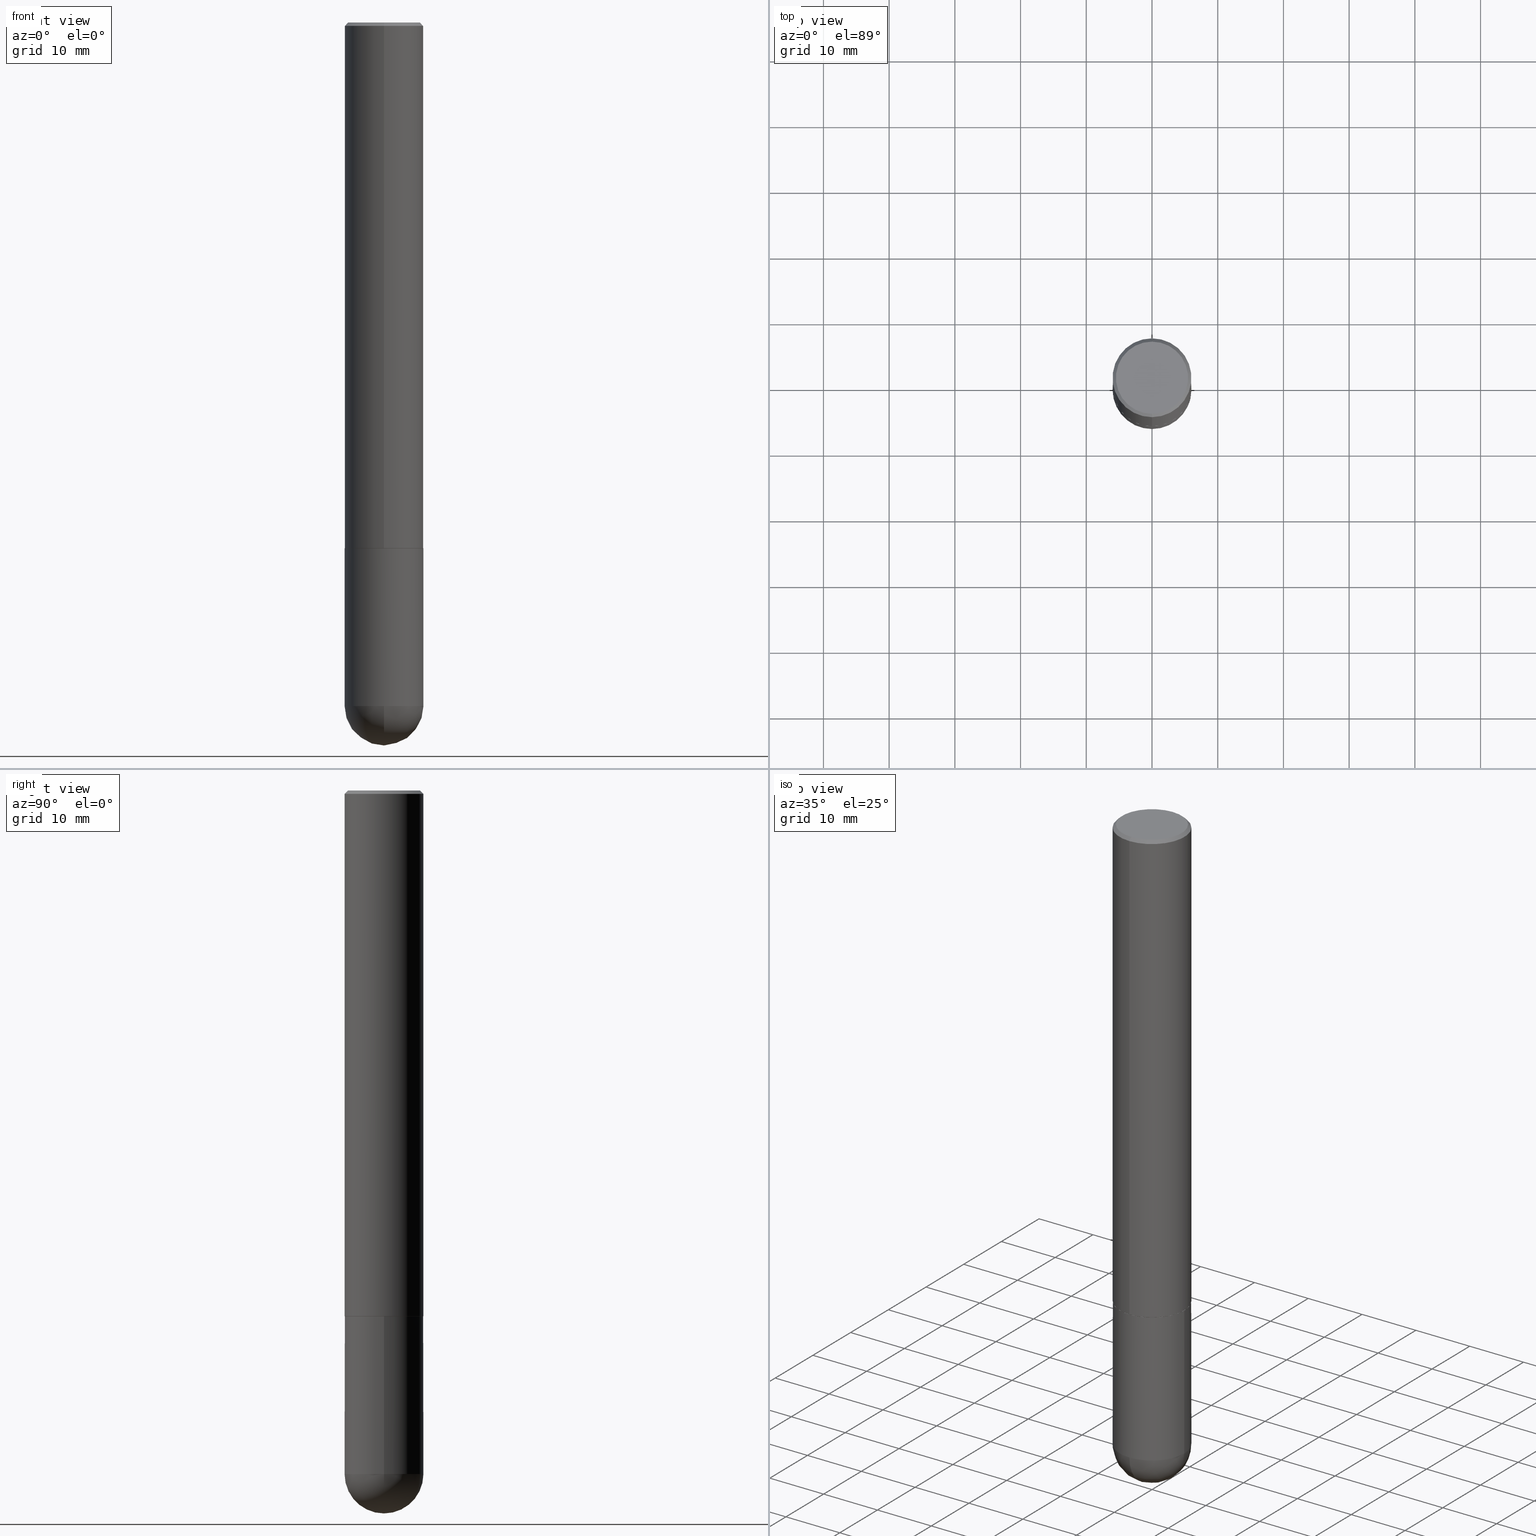
[diagram: canonical four-view strip — front | top / right | iso, engineering-drawing reading convention]
A machine part, canonical four-view strip (front | top / right | iso — engineering-drawing reading convention). The complete STEP part file that produces these views, byte-faithful:
ISO-10303-21;
HEADER;
FILE_DESCRIPTION (( 'STEP AP203' ),
    '1' );
FILE_NAME ('43905.STEP',
    '2024-04-10T11:44:59',
    ( '' ),
    ( '' ),
    'SwSTEP 2.0',
    'SolidWorks 2023',
    '' );
FILE_SCHEMA (( 'CONFIG_CONTROL_DESIGN' ));
ENDSEC;

DATA;
#1 = AXIS2_PLACEMENT_3D ( 'NONE', #88, #159, #226 ) ;
#2 = CARTESIAN_POINT ( 'NONE',  ( -5.110810708303771248E-45, 7.292456936536269045E-31, 2.089277500898832412E-16 ) ) ;
#3 = CC_DESIGN_DATE_AND_TIME_ASSIGNMENT ( #148, #327, ( #183 ) ) ;
#4 = FACE_OUTER_BOUND ( 'NONE', #208, .T. ) ;
#5 = FACE_OUTER_BOUND ( 'NONE', #63, .T. ) ;
#6 = LOCAL_TIME ( 7, 44, 59.00000000000000000, #35 ) ;
#7 = LINE ( 'NONE', #98, #215 ) ;
#8 = DIRECTION ( 'NONE',  ( -6.982962677686265133E-15, -1.000000000000000000, 4.645999989224937221E-15 ) ) ;
#9 = EDGE_LOOP ( 'NONE', ( #292, #170 ) ) ;
#10 = MECHANICAL_CONTEXT ( 'NONE', #117, 'mechanical' ) ;
#11 = CARTESIAN_POINT ( 'NONE',  ( 1.509716530915768746E-15, 0.2161999999999997257, -6.501650284879086356E-16 ) ) ;
#12 = ORIENTED_EDGE ( 'NONE', *, *, #52, .F. ) ;
#13 = CARTESIAN_POINT ( 'NONE',  ( 1.026957149490729443E-28, -1.558027752357013406E-14, -4.330700000000000216 ) ) ;
#14 = CC_DESIGN_SECURITY_CLASSIFICATION ( #218, ( #102 ) ) ;
#15 = APPLICATION_PROTOCOL_DEFINITION ( 'international standard', 'config_control_design', 1994, #117 ) ;
#16 = VECTOR ( 'NONE', #279, 39.37007874015748143 ) ;
#17 = CLOSED_SHELL ( 'NONE', ( #254, #407, #156, #371, #249, #131, #314, #73 ) ) ;
#18 = ORIENTED_EDGE ( 'NONE', *, *, #374, .F. ) ;
#19 =( NAMED_UNIT ( * ) PLANE_ANGLE_UNIT ( ) SI_UNIT ( $, .RADIAN. ) );
#20 = ORIENTED_EDGE ( 'NONE', *, *, #216, .T. ) ;
#21 = EDGE_LOOP ( 'NONE', ( #399, #403 ) ) ;
#22 = DIRECTION ( 'NONE',  ( -1.000000000000000000, 6.982962677686265922E-15, -4.883557194083112901E-29 ) ) ;
#23 = CARTESIAN_POINT ( 'NONE',  ( 7.704581799185809683E-29, -1.099342828199384155E-14, -3.149600000000000399 ) ) ;
#24 = DIRECTION ( 'NONE',  ( -6.982962677686265922E-15, -1.000000000000000000, 3.490420460373964582E-15 ) ) ;
#25 = FACE_OUTER_BOUND ( 'NONE', #21, .T. ) ;
#26 = ADVANCED_FACE ( 'NONE', ( #322 ), #95, .T. ) ;
#27 = CIRCLE ( 'NONE', #83, 0.2351999999999999924 ) ;
#28 = DIRECTION ( 'NONE',  ( -6.982962677686265922E-15, -1.000000000000000000, 4.626330217890361448E-15 ) ) ;
#29 = VECTOR ( 'NONE', #160, 39.37007874015748143 ) ;
#30 = CARTESIAN_POINT ( 'NONE',  ( -1.649375784469421978E-15, -0.2362000000000114008, -3.148599999999999177 ) ) ;
#31 = DIRECTION ( 'NONE',  ( 2.446209613660721864E-29, -3.490420460373964582E-15, -1.000000000000000000 ) ) ;
#32 = APPROVAL_STATUS ( 'not_yet_approved' ) ;
#33 = DIRECTION ( 'NONE',  ( -2.446209613660721864E-29, 3.490420460373964582E-15, 1.000000000000000000 ) ) ;
#34 = VERTEX_POINT ( 'NONE', #136 ) ;
#35 = COORDINATED_UNIVERSAL_TIME_OFFSET ( 5, 0, .BEHIND. ) ;
#36 = AXIS2_PLACEMENT_3D ( 'NONE', #138, #172, #60 ) ;
#37 = DIRECTION ( 'NONE',  ( -2.446209613660721864E-29, 3.490420460373964582E-15, 1.000000000000000000 ) ) ;
#38 = VERTEX_POINT ( 'NONE', #255 ) ;
#39 = SPHERICAL_SURFACE ( 'NONE', #146, 0.2362000000000002709 ) ;
#40 = VERTEX_POINT ( 'NONE', #391 ) ;
#41 = APPLICATION_PROTOCOL_DEFINITION ( 'international standard', 'config_control_design', 1994, #375 ) ;
#42 = PRODUCT ( '43905', '43905', '', ( #10 ) ) ;
#43 = ORIENTED_EDGE ( 'NONE', *, *, #185, .T. ) ;
#44 = PERSON_AND_ORGANIZATION ( #381, #383 ) ;
#45 = AXIS2_PLACEMENT_3D ( 'NONE', #309, #276, #406 ) ;
#46 = ORIENTED_EDGE ( 'NONE', *, *, #331, .F. ) ;
#47 = CALENDAR_DATE ( 2024, 10, 4 ) ;
#48 = EDGE_CURVE ( 'NONE', #177, #133, #318, .T. ) ;
#49 = EDGE_LOOP ( 'NONE', ( #350, #234, #184, #46 ) ) ;
#50 = APPROVAL ( #175, 'UNSPECIFIED' ) ;
#51 = LINE ( 'NONE', #186, #192 ) ;
#52 = EDGE_CURVE ( 'NONE', #74, #119, #409, .T. ) ;
#53 = DIRECTION ( 'NONE',  ( -6.982962677686265922E-15, -1.000000000000000000, 3.490420460373964977E-15 ) ) ;
#54 = DIRECTION ( 'NONE',  ( -2.446209613660721864E-29, 3.490420460373964582E-15, 1.000000000000000000 ) ) ;
#55 = DIRECTION ( 'NONE',  ( -2.446209613660721864E-29, 3.490420460373964582E-15, 1.000000000000000000 ) ) ;
#56 = CC_DESIGN_APPROVAL ( #50, ( #102 ) ) ;
#57 = ADVANCED_FACE ( 'NONE', ( #259 ), #39, .T. ) ;
#58 = CIRCLE ( 'NONE', #45, 0.2361999999999999933 ) ;
#59 = FACE_OUTER_BOUND ( 'NONE', #396, .T. ) ;
#60 = DIRECTION ( 'NONE',  ( 1.000000000000000000, -6.982962677686265133E-15, 0.000000000000000000 ) ) ;
#61 = CARTESIAN_POINT ( 'NONE',  ( -1.620449627073634487E-15, -0.2361999999999999933, -0.01999999999999922673 ) ) ;
#62 = DIRECTION ( 'NONE',  ( 1.000000000000000000, -6.982962677686265133E-15, 0.000000000000000000 ) ) ;
#63 = EDGE_LOOP ( 'NONE', ( #237, #104, #368, #258 ) ) ;
#64 = LENGTH_MEASURE_WITH_UNIT ( LENGTH_MEASURE( 0.02539999999999999897 ), #144 );
#65 = EDGE_CURVE ( 'NONE', #74, #228, #284, .T. ) ;
#66 = DIRECTION ( 'NONE',  ( 6.982962677686265922E-15, 1.000000000000000000, 0.000000000000000000 ) ) ;
#67 = ORIENTED_EDGE ( 'NONE', *, *, #242, .T. ) ;
#68 = APPROVAL_DATE_TIME ( #106, #50 ) ;
#69 = DIRECTION ( 'NONE',  ( 5.024295867789605402E-15, 0.7071067811867671749, 0.7071067811863278596 ) ) ;
#70 = CC_DESIGN_PERSON_AND_ORGANIZATION_ASSIGNMENT ( #352, #238, ( #183 ) ) ;
#71 = VERTEX_POINT ( 'NONE', #132 ) ;
#72 = APPROVAL_ROLE ( '' ) ;
#73 = ADVANCED_FACE ( 'NONE', ( #293 ), #207, .F. ) ;
#74 = VERTEX_POINT ( 'NONE', #13 ) ;
#75 = DATE_TIME_ROLE ( 'classification_date' ) ;
#76 = MANIFOLD_SOLID_BREP ( 'Body-Move/Copy2[2]', #17 ) ;
#77 = MANIFOLD_SOLID_BREP ( 'Body-Move/Copy2[1]', #225 ) ;
#78 = EDGE_LOOP ( 'NONE', ( #329, #149, #20, #361 ) ) ;
#79 = CARTESIAN_POINT ( 'NONE',  ( 7.704581799185809683E-29, -1.099342828199384155E-14, -3.149600000000000399 ) ) ;
#80 = VERTEX_POINT ( 'NONE', #223 ) ;
#81 =( GEOMETRIC_REPRESENTATION_CONTEXT ( 3 ) GLOBAL_UNCERTAINTY_ASSIGNED_CONTEXT ( ( #110 ) ) GLOBAL_UNIT_ASSIGNED_CONTEXT ( ( #101, #19, #140 ) ) REPRESENTATION_CONTEXT ( 'NONE', 'WORKASPACE' ) );
#82 = DIRECTION ( 'NONE',  ( 1.000000000000000000, -6.982962677686266711E-15, 4.876176775795936353E-29 ) ) ;
#83 = AXIS2_PLACEMENT_3D ( 'NONE', #79, #373, #311 ) ;
#84 = LINE ( 'NONE', #217, #157 ) ;
#85 = DIRECTION ( 'NONE',  ( -2.446209613660721864E-29, 3.490420460373964582E-15, 1.000000000000000000 ) ) ;
#86 = CIRCLE ( 'NONE', #36, 0.2361999999999999933 ) ;
#87 = CIRCLE ( 'NONE', #398, 0.2362000000000004096 ) ;
#88 = CARTESIAN_POINT ( 'NONE',  ( 1.001297202692504215E-28, -1.429587034189326149E-14, -4.094500000000000028 ) ) ;
#89 = DIRECTION ( 'NONE',  ( -6.982962677686265922E-15, -1.000000000000000000, 3.490420460373964582E-15 ) ) ;
#90 = CC_DESIGN_PERSON_AND_ORGANIZATION_ASSIGNMENT ( #390, #209, ( #102 ) ) ;
#91 = DIRECTION ( 'NONE',  ( -6.982962677686265922E-15, -1.000000000000000000, 3.490420460373964582E-15 ) ) ;
#92 = CARTESIAN_POINT ( 'NONE',  ( 9.681852249011155898E-29, -1.477005271003331337E-14, -4.094500000000000028 ) ) ;
#93 = AXIS2_PLACEMENT_3D ( 'NONE', #103, #31, #389 ) ;
#94 = DIRECTION ( 'NONE',  ( -1.000000000000000000, 6.982962677686265922E-15, -4.876176775795935793E-29 ) ) ;
#95 = CYLINDRICAL_SURFACE ( 'NONE', #277, 0.2361999999999999933 ) ;
#96 = EDGE_CURVE ( 'NONE', #34, #243, #372, .T. ) ;
#97 = EDGE_LOOP ( 'NONE', ( #174, #43, #118, #294, #245 ) ) ;
#98 = CARTESIAN_POINT ( 'NONE',  ( -0.2361999999999999933, 1.678301941865356591E-15, -1.161852468318208757E-29 ) ) ;
#99 = ORIENTED_EDGE ( 'NONE', *, *, #96, .T. ) ;
#100 = DIMENSIONAL_EXPONENTS ( 1.000000000000000000, 0.000000000000000000, 0.000000000000000000, 0.000000000000000000, 0.000000000000000000, 0.000000000000000000, 0.000000000000000000 ) ;
#101 =( CONVERSION_BASED_UNIT ( 'INCH', #64 ) LENGTH_UNIT ( ) NAMED_UNIT ( #100 ) );
#102 = PRODUCT_DEFINITION_FORMATION_WITH_SPECIFIED_SOURCE ( 'ANY', '', #42, .NOT_KNOWN. ) ;
#103 = CARTESIAN_POINT ( 'NONE',  ( 4.892419227321456446E-31, -6.980840920747946766E-17, -0.02000000000000005246 ) ) ;
#104 = ORIENTED_EDGE ( 'NONE', *, *, #246, .T. ) ;
#105 = CIRCLE ( 'NONE', #346, 0.2351999999999999924 ) ;
#106 = DATE_AND_TIME ( #393, #313 ) ;
#107 = EDGE_CURVE ( 'NONE', #71, #119, #214, .T. ) ;
#108 = AXIS2_PLACEMENT_3D ( 'NONE', #353, #328, #330 ) ;
#109 = CARTESIAN_POINT ( 'NONE',  ( 1.649375784469595330E-15, 0.2361999999999855882, -4.094500000000001805 ) ) ;
#110 = UNCERTAINTY_MEASURE_WITH_UNIT (LENGTH_MEASURE( 1.000000000000000082E-05 ), #101, 'distance_accuracy_value', 'NONE');
#111 = ORIENTED_EDGE ( 'NONE', *, *, #359, .F. ) ;
#112 = PERSON_AND_ORGANIZATION_ROLE ( 'design_owner' ) ;
#113 = EDGE_CURVE ( 'NONE', #243, #34, #408, .T. ) ;
#114 = ORIENTED_EDGE ( 'NONE', *, *, #224, .F. ) ;
#115 = CALENDAR_DATE ( 2024, 10, 4 ) ;
#116 = APPROVAL_PERSON_ORGANIZATION ( #321, #269, #167 ) ;
#117 = APPLICATION_CONTEXT ( 'configuration controlled 3d designs of mechanical parts and assemblies' ) ;
#118 = ORIENTED_EDGE ( 'NONE', *, *, #402, .F. ) ;
#119 = VERTEX_POINT ( 'NONE', #109 ) ;
#120 = EDGE_CURVE ( 'NONE', #38, #80, #236, .T. ) ;
#121 = AXIS2_PLACEMENT_3D ( 'NONE', #315, #411, #24 ) ;
#122 = CARTESIAN_POINT ( 'NONE',  ( -1.678301941865258773E-15, -0.2362000000000146760, -4.094499999999999140 ) ) ;
#123 = AXIS2_PLACEMENT_3D ( 'NONE', #342, #125, #348 ) ;
#124 = EDGE_CURVE ( 'NONE', #272, #38, #105, .T. ) ;
#125 = DIRECTION ( 'NONE',  ( -2.446209613660721864E-29, 3.490420460373964582E-15, 1.000000000000000000 ) ) ;
#126 = FACE_OUTER_BOUND ( 'NONE', #199, .T. ) ;
#127 = CYLINDRICAL_SURFACE ( 'NONE', #364, 0.2362000000000001598 ) ;
#128 = DIRECTION ( 'NONE',  ( -2.446209613660721864E-29, 3.490420460373964582E-15, 1.000000000000000000 ) ) ;
#129 = CARTESIAN_POINT ( 'NONE',  ( 0.2361999999999999933, -1.264614540928986883E-14, -3.149600000000000399 ) ) ;
#130 = DIRECTION ( 'NONE',  ( -4.851104656540955597E-15, -0.7071067811865487940, -0.7071067811865461294 ) ) ;
#131 = ADVANCED_FACE ( 'NONE', ( #4 ), #161, .T. ) ;
#132 = CARTESIAN_POINT ( 'NONE',  ( 0.2361999999999999933, -1.429569576782631264E-14, -4.094500000000000028 ) ) ;
#133 = VERTEX_POINT ( 'NONE', #129 ) ;
#134 = AXIS2_PLACEMENT_3D ( 'NONE', #23, #85, #219 ) ;
#135 = COORDINATED_UNIVERSAL_TIME_OFFSET ( 5, 0, .BEHIND. ) ;
#136 = CARTESIAN_POINT ( 'NONE',  ( 1.649375784469495934E-15, 0.2361999999999998545, -0.02000000000000087472 ) ) ;
#137 = ORIENTED_EDGE ( 'NONE', *, *, #310, .F. ) ;
#138 = CARTESIAN_POINT ( 'NONE',  ( 1.001297202692504215E-28, -1.429587034189326149E-14, -4.094500000000000028 ) ) ;
#139 = CIRCLE ( 'NONE', #173, 0.2161999999999997257 ) ;
#140 =( NAMED_UNIT ( * ) SI_UNIT ( $, .STERADIAN. ) SOLID_ANGLE_UNIT ( ) );
#141 = CARTESIAN_POINT ( 'NONE',  ( 4.892419227321456446E-31, -6.980840920747946766E-17, -0.02000000000000005246 ) ) ;
#142 = ADVANCED_BREP_SHAPE_REPRESENTATION ( '43905', ( #77, #76, #280 ), #81 ) ;
#143 = AXIS2_PLACEMENT_3D ( 'NONE', #275, #22, #248 ) ;
#144 =( LENGTH_UNIT ( ) NAMED_UNIT ( * ) SI_UNIT ( $, .METRE. ) );
#145 = EDGE_CURVE ( 'NONE', #355, #228, #86, .T. ) ;
#146 = AXIS2_PLACEMENT_3D ( 'NONE', #227, #387, #176 ) ;
#147 = ORIENTED_EDGE ( 'NONE', *, *, #120, .F. ) ;
#148 = DATE_AND_TIME ( #203, #273 ) ;
#149 = ORIENTED_EDGE ( 'NONE', *, *, #271, .T. ) ;
#150 = SHAPE_DEFINITION_REPRESENTATION ( #240, #142 ) ;
#151 = ORIENTED_EDGE ( 'NONE', *, *, #145, .F. ) ;
#152 = AXIS2_PLACEMENT_3D ( 'NONE', #337, #367, #82 ) ;
#153 = DIRECTION ( 'NONE',  ( -2.446209613660722145E-29, 3.490420460373964582E-15, 1.000000000000000000 ) ) ;
#154 = APPROVAL ( #265, 'UNSPECIFIED' ) ;
#155 = AXIS2_PLACEMENT_3D ( 'NONE', #410, #250, #53 ) ;
#156 = ADVANCED_FACE ( 'NONE', ( #195 ), #247, .T. ) ;
#157 = VECTOR ( 'NONE', #188, 39.37007874015748143 ) ;
#158 = CARTESIAN_POINT ( 'NONE',  ( -1.620449627073634487E-15, -0.2361999999999999933, -0.01999999999999922673 ) ) ;
#159 = DIRECTION ( 'NONE',  ( -2.445468806185136597E-29, 3.491481338843145583E-15, 1.000000000000000000 ) ) ;
#160 = DIRECTION ( 'NONE',  ( 4.937700262164540154E-15, 0.7071067811865440200, -0.7071067811865511255 ) ) ;
#161 = CONICAL_SURFACE ( 'NONE', #394, 0.2351999999999999924, 0.7853981633977554777 ) ;
#162 = AXIS2_PLACEMENT_3D ( 'NONE', #11, #202, #347 ) ;
#163 = DIRECTION ( 'NONE',  ( 6.982962677686265922E-15, 1.000000000000000000, -3.487819265831412533E-15 ) ) ;
#164 = DIRECTION ( 'NONE',  ( -2.446209613660721864E-29, 3.490420460373964582E-15, 1.000000000000000000 ) ) ;
#165 = DIRECTION ( 'NONE',  ( 2.446209613660721864E-29, -3.490420460373964582E-15, -1.000000000000000000 ) ) ;
#166 = CARTESIAN_POINT ( 'NONE',  ( 1.001297202692504215E-28, -1.429587034189326149E-14, -4.094500000000000028 ) ) ;
#167 = APPROVAL_ROLE ( '' ) ;
#168 = DIRECTION ( 'NONE',  ( -6.982962677686265133E-15, -1.000000000000000000, 4.645999989224937221E-15 ) ) ;
#169 = AXIS2_PLACEMENT_3D ( 'NONE', #382, #54, #89 ) ;
#170 = ORIENTED_EDGE ( 'NONE', *, *, #304, .T. ) ;
#171 = COORDINATED_UNIVERSAL_TIME_OFFSET ( 5, 0, .BEHIND. ) ;
#172 = DIRECTION ( 'NONE',  ( -2.445468806185136597E-29, 3.491481338843145583E-15, 1.000000000000000000 ) ) ;
#173 = AXIS2_PLACEMENT_3D ( 'NONE', #2, #128, #91 ) ;
#174 = ORIENTED_EDGE ( 'NONE', *, *, #359, .T. ) ;
#175 = APPROVAL_STATUS ( 'not_yet_approved' ) ;
#176 = DIRECTION ( 'NONE',  ( 6.982962677686265922E-15, 1.000000000000000000, -4.626330217890364603E-15 ) ) ;
#177 = VERTEX_POINT ( 'NONE', #288 ) ;
#178 = ORIENTED_EDGE ( 'NONE', *, *, #52, .T. ) ;
#179 = SECURITY_CLASSIFICATION_LEVEL ( 'unclassified' ) ;
#180 = AXIS2_PLACEMENT_3D ( 'NONE', #230, #356, #66 ) ;
#181 = ORIENTED_EDGE ( 'NONE', *, *, #271, .F. ) ;
#182 = DATE_AND_TIME ( #47, #6 ) ;
#183 = PRODUCT_DEFINITION ( 'UNKNOWN', '', #102, #300 ) ;
#184 = ORIENTED_EDGE ( 'NONE', *, *, #113, .T. ) ;
#185 = EDGE_CURVE ( 'NONE', #355, #177, #7, .T. ) ;
#186 = CARTESIAN_POINT ( 'NONE',  ( -1.649375784469497117E-15, -0.2362000000000001598, 8.244373127403310428E-16 ) ) ;
#187 = ADVANCED_FACE ( 'NONE', ( #233 ), #316, .T. ) ;
#188 = DIRECTION ( 'NONE',  ( -2.445468806185136877E-29, 3.491481338843145188E-15, 1.000000000000000000 ) ) ;
#189 = CYLINDRICAL_SURFACE ( 'NONE', #155, 0.2362000000000001598 ) ;
#190 = DIRECTION ( 'NONE',  ( 2.438088387897960049E-29, -3.491481338843145188E-15, -1.000000000000000000 ) ) ;
#191 = CARTESIAN_POINT ( 'NONE',  ( 0.000000000000000000, 0.000000000000000000, 0.000000000000000000 ) ) ;
#192 = VECTOR ( 'NONE', #153, 39.37007874015748143 ) ;
#193 = CC_DESIGN_PERSON_AND_ORGANIZATION_ASSIGNMENT ( #270, #400, ( #218 ) ) ;
#194 = CARTESIAN_POINT ( 'NONE',  ( 1.649375784469495934E-15, 0.2361999999999998545, -0.02000000000000087472 ) ) ;
#195 = FACE_OUTER_BOUND ( 'NONE', #49, .T. ) ;
#196 = EDGE_CURVE ( 'NONE', #38, #272, #27, .T. ) ;
#197 = DIRECTION ( 'NONE',  ( -2.445468806185136597E-29, 3.491481338843145583E-15, 1.000000000000000000 ) ) ;
#198 = DIRECTION ( 'NONE',  ( -6.982962677686265922E-15, -1.000000000000000000, 3.487819265831412533E-15 ) ) ;
#199 = EDGE_LOOP ( 'NONE', ( #362, #332 ) ) ;
#200 = CC_DESIGN_APPROVAL ( #154, ( #183 ) ) ;
#201 = PERSON_AND_ORGANIZATION_ROLE ( 'design_supplier' ) ;
#202 = DIRECTION ( 'NONE',  ( 2.446209613660721584E-29, -3.490420460373964582E-15, -1.000000000000000000 ) ) ;
#203 = CALENDAR_DATE ( 2024, 10, 4 ) ;
#204 = ADVANCED_FACE ( 'NONE', ( #212 ), #405, .T. ) ;
#205 = DIRECTION ( 'NONE',  ( -2.445468806185136597E-29, 3.491481338843145583E-15, 1.000000000000000000 ) ) ;
#206 = EDGE_LOOP ( 'NONE', ( #12, #326, #151, #111 ) ) ;
#207 = PLANE ( 'NONE',  #162 ) ;
#208 = EDGE_LOOP ( 'NONE', ( #147, #357, #231, #181 ) ) ;
#209 = PERSON_AND_ORGANIZATION_ROLE ( 'creator' ) ;
#210 = ORIENTED_EDGE ( 'NONE', *, *, #48, .F. ) ;
#211 = ORIENTED_EDGE ( 'NONE', *, *, #107, .F. ) ;
#212 = FACE_OUTER_BOUND ( 'NONE', #206, .T. ) ;
#213 = ORIENTED_EDGE ( 'NONE', *, *, #331, .T. ) ;
#214 = CIRCLE ( 'NONE', #370, 0.2361999999999999933 ) ;
#215 = VECTOR ( 'NONE', #263, 39.37007874015748143 ) ;
#216 = EDGE_CURVE ( 'NONE', #261, #243, #51, .T. ) ;
#217 = CARTESIAN_POINT ( 'NONE',  ( 0.2361999999999999933, -1.649375784469496131E-15, 1.151752954443000088E-29 ) ) ;
#218 = SECURITY_CLASSIFICATION ( '', '', #179 ) ;
#219 = DIRECTION ( 'NONE',  ( -6.982962677686265133E-15, -1.000000000000000000, 4.645999989224937221E-15 ) ) ;
#220 = CARTESIAN_POINT ( 'NONE',  ( -1.642392821791732414E-15, -0.2352000000000109836, -3.149599999999999067 ) ) ;
#221 = PLANE ( 'NONE',  #121 ) ;
#222 = FACE_OUTER_BOUND ( 'NONE', #78, .T. ) ;
#223 = CARTESIAN_POINT ( 'NONE',  ( 1.678301941865397612E-15, 0.2361999999999894462, -3.148600000000001398 ) ) ;
#224 = EDGE_CURVE ( 'NONE', #228, #71, #58, .T. ) ;
#225 = CLOSED_SHELL ( 'NONE', ( #26, #204, #57, #351, #187 ) ) ;
#226 = DIRECTION ( 'NONE',  ( 1.000000000000000000, -6.982962677686265133E-15, 0.000000000000000000 ) ) ;
#227 = CARTESIAN_POINT ( 'NONE',  ( 9.681852249011155898E-29, -1.477005271003331337E-14, -4.094500000000000028 ) ) ;
#228 = VERTEX_POINT ( 'NONE', #122 ) ;
#229 = DIRECTION ( 'NONE',  ( 0.000000000000000000, 0.000000000000000000, 1.000000000000000000 ) ) ;
#230 = CARTESIAN_POINT ( 'NONE',  ( 9.681852249011155898E-29, -1.477005271003331337E-14, -4.094500000000000028 ) ) ;
#231 = ORIENTED_EDGE ( 'NONE', *, *, #298, .T. ) ;
#232 = PERSON_AND_ORGANIZATION ( #381, #383 ) ;
#233 = FACE_OUTER_BOUND ( 'NONE', #274, .T. ) ;
#234 = ORIENTED_EDGE ( 'NONE', *, *, #374, .T. ) ;
#235 = APPROVAL_ROLE ( '' ) ;
#236 = LINE ( 'NONE', #360, #334 ) ;
#237 = ORIENTED_EDGE ( 'NONE', *, *, #310, .T. ) ;
#238 = PERSON_AND_ORGANIZATION_ROLE ( 'creator' ) ;
#239 = ORIENTED_EDGE ( 'NONE', *, *, #120, .T. ) ;
#240 = PRODUCT_DEFINITION_SHAPE ( 'NONE', 'NONE',  #183 ) ;
#241 = COORDINATED_UNIVERSAL_TIME_OFFSET ( 5, 0, .BEHIND. ) ;
#242 = EDGE_CURVE ( 'NONE', #71, #133, #84, .T. ) ;
#243 = VERTEX_POINT ( 'NONE', #158 ) ;
#244 = CIRCLE ( 'NONE', #123, 0.2362000000000004096 ) ;
#245 = ORIENTED_EDGE ( 'NONE', *, *, #107, .T. ) ;
#246 = EDGE_CURVE ( 'NONE', #80, #34, #253, .T. ) ;
#247 = CONICAL_SURFACE ( 'NONE', #93, 0.2361999999999999378, 0.7853981633974467247 ) ;
#248 = DIRECTION ( 'NONE',  ( 6.982962677686265922E-15, 1.000000000000000000, -4.626330217890364603E-15 ) ) ;
#249 = ADVANCED_FACE ( 'NONE', ( #222 ), #127, .T. ) ;
#250 = DIRECTION ( 'NONE',  ( -2.446209613660721864E-29, 3.490420460373964582E-15, 1.000000000000000000 ) ) ;
#251 = CARTESIAN_POINT ( 'NONE',  ( -0.2361999999999999933, -1.096801804149146287E-14, -4.094500000000000028 ) ) ;
#252 = DIRECTION ( 'NONE',  ( -2.446209613660721864E-29, 3.490420460373964582E-15, 1.000000000000000000 ) ) ;
#253 = LINE ( 'NONE', #376, #301 ) ;
#254 = ADVANCED_FACE ( 'NONE', ( #59 ), #386, .T. ) ;
#255 = CARTESIAN_POINT ( 'NONE',  ( 1.674749228186634382E-15, 0.2351999999999890012, -3.149600000000001288 ) ) ;
#256 = LINE ( 'NONE', #385, #16 ) ;
#257 = CARTESIAN_POINT ( 'NONE',  ( 0.000000000000000000, 0.000000000000000000, 0.000000000000000000 ) ) ;
#258 = ORIENTED_EDGE ( 'NONE', *, *, #216, .F. ) ;
#259 = FACE_OUTER_BOUND ( 'NONE', #323, .T. ) ;
#260 = CC_DESIGN_PERSON_AND_ORGANIZATION_ASSIGNMENT ( #44, #201, ( #102 ) ) ;
#261 = VERTEX_POINT ( 'NONE', #30 ) ;
#262 = PERSON_AND_ORGANIZATION ( #381, #383 ) ;
#263 = DIRECTION ( 'NONE',  ( -2.445468806185136877E-29, 3.491481338843145188E-15, 1.000000000000000000 ) ) ;
#264 = LOCAL_TIME ( 7, 44, 59.00000000000000000, #241 ) ;
#265 = APPROVAL_STATUS ( 'not_yet_approved' ) ;
#266 = CIRCLE ( 'NONE', #169, 0.2161999999999997257 ) ;
#267 = DIRECTION ( 'NONE',  ( -2.445468806185136597E-29, 3.491481338843145583E-15, 1.000000000000000000 ) ) ;
#268 = ORIENTED_EDGE ( 'NONE', *, *, #185, .F. ) ;
#269 = APPROVAL ( #32, 'UNSPECIFIED' ) ;
#270 = PERSON_AND_ORGANIZATION ( #381, #383 ) ;
#271 = EDGE_CURVE ( 'NONE', #80, #261, #244, .T. ) ;
#272 = VERTEX_POINT ( 'NONE', #220 ) ;
#273 = LOCAL_TIME ( 7, 44, 59.00000000000000000, #135 ) ;
#274 = EDGE_LOOP ( 'NONE', ( #268, #404, #335, #67, #210 ) ) ;
#275 = CARTESIAN_POINT ( 'NONE',  ( 9.681852249011155898E-29, -1.477005271003331337E-14, -4.094500000000000028 ) ) ;
#276 = DIRECTION ( 'NONE',  ( -2.445468806185136597E-29, 3.491481338843145583E-15, 1.000000000000000000 ) ) ;
#277 = AXIS2_PLACEMENT_3D ( 'NONE', #257, #205, #384 ) ;
#278 = CARTESIAN_POINT ( 'NONE',  ( 1.579546157692632438E-15, 0.2161999999999997257, -5.457011534429669164E-16 ) ) ;
#279 = DIRECTION ( 'NONE',  ( -4.937700262166064233E-15, -0.7071067811867622899, 0.7071067811863327446 ) ) ;
#280 = AXIS2_PLACEMENT_3D ( 'NONE', #295, #229, #303 ) ;
#281 = AXIS2_PLACEMENT_3D ( 'NONE', #141, #325, #349 ) ;
#282 = PLANE ( 'NONE',  #306 ) ;
#283 = AXIS2_PLACEMENT_3D ( 'NONE', #395, #33, #198 ) ;
#284 = CIRCLE ( 'NONE', #338, 0.2362000000000002709 ) ;
#285 = LINE ( 'NONE', #61, #341 ) ;
#286 = CARTESIAN_POINT ( 'NONE',  ( 7.704581799185809683E-29, -1.099342828199384155E-14, -3.149600000000000399 ) ) ;
#287 = DIRECTION ( 'NONE',  ( 1.000000000000000000, -6.982962677686265133E-15, 0.000000000000000000 ) ) ;
#288 = CARTESIAN_POINT ( 'NONE',  ( -0.2361999999999999933, -1.096801804149146130E-14, -3.149600000000000399 ) ) ;
#289 = CIRCLE ( 'NONE', #377, 0.2361999999999999933 ) ;
#290 = DATE_AND_TIME ( #115, #333 ) ;
#291 = CARTESIAN_POINT ( 'NONE',  ( 7.704581799185809683E-29, -1.099342828199384155E-14, -3.149600000000000399 ) ) ;
#292 = ORIENTED_EDGE ( 'NONE', *, *, #388, .T. ) ;
#293 = FACE_OUTER_BOUND ( 'NONE', #9, .T. ) ;
#294 = ORIENTED_EDGE ( 'NONE', *, *, #242, .F. ) ;
#295 = CARTESIAN_POINT ( 'NONE',  ( 0.000000000000000000, 0.000000000000000000, 0.000000000000000000 ) ) ;
#296 = DIRECTION ( 'NONE',  ( -7.105427357601001070E-15, -1.000000000000000000, 0.000000000000000000 ) ) ;
#297 = ORIENTED_EDGE ( 'NONE', *, *, #388, .F. ) ;
#298 = EDGE_CURVE ( 'NONE', #272, #261, #256, .T. ) ;
#299 = APPROVAL_DATE_TIME ( #290, #154 ) ;
#300 = DESIGN_CONTEXT ( 'detailed design', #375, 'design' ) ;
#301 = VECTOR ( 'NONE', #412, 39.37007874015748143 ) ;
#302 = ORIENTED_EDGE ( 'NONE', *, *, #65, .F. ) ;
#303 = DIRECTION ( 'NONE',  ( 1.000000000000000000, 0.000000000000000000, 0.000000000000000000 ) ) ;
#304 = EDGE_CURVE ( 'NONE', #40, #307, #266, .T. ) ;
#305 = ORIENTED_EDGE ( 'NONE', *, *, #124, .T. ) ;
#306 = AXIS2_PLACEMENT_3D ( 'NONE', #344, #190, #94 ) ;
#307 = VERTEX_POINT ( 'NONE', #278 ) ;
#308 = APPROVAL_PERSON_ORGANIZATION ( #262, #50, #72 ) ;
#309 = CARTESIAN_POINT ( 'NONE',  ( 1.001297202692504215E-28, -1.429587034189326149E-14, -4.094500000000000028 ) ) ;
#310 = EDGE_CURVE ( 'NONE', #261, #80, #87, .T. ) ;
#311 = DIRECTION ( 'NONE',  ( -6.982962677686265133E-15, -1.000000000000000000, 4.645999989224937221E-15 ) ) ;
#312 = CC_DESIGN_PERSON_AND_ORGANIZATION_ASSIGNMENT ( #397, #112, ( #42 ) ) ;
#313 = LOCAL_TIME ( 7, 44, 59.00000000000000000, #358 ) ;
#314 = ADVANCED_FACE ( 'NONE', ( #25 ), #221, .F. ) ;
#315 = CARTESIAN_POINT ( 'NONE',  ( 7.704581799185809683E-29, -1.099342828199384155E-14, -3.149600000000000399 ) ) ;
#316 = CYLINDRICAL_SURFACE ( 'NONE', #152, 0.2361999999999999933 ) ;
#317 = CARTESIAN_POINT ( 'NONE',  ( 4.892419227321456446E-31, -6.980840920747946766E-17, -0.02000000000000005246 ) ) ;
#318 = CIRCLE ( 'NONE', #108, 0.2361999999999999933 ) ;
#319 = CARTESIAN_POINT ( 'NONE',  ( 7.702135589572149804E-29, -1.098993786153346755E-14, -3.148600000000000509 ) ) ;
#320 = DIRECTION ( 'NONE',  ( -1.000000000000000000, 7.105427357601001070E-15, -4.926315508542082329E-29 ) ) ;
#321 = PERSON_AND_ORGANIZATION ( #381, #383 ) ;
#322 = FACE_OUTER_BOUND ( 'NONE', #97, .T. ) ;
#323 = EDGE_LOOP ( 'NONE', ( #302, #178, #211, #114 ) ) ;
#324 = DATE_AND_TIME ( #363, #264 ) ;
#325 = DIRECTION ( 'NONE',  ( -2.446209613660721864E-29, 3.490420460373964582E-15, 1.000000000000000000 ) ) ;
#326 = ORIENTED_EDGE ( 'NONE', *, *, #65, .T. ) ;
#327 = DATE_TIME_ROLE ( 'creation_date' ) ;
#328 = DIRECTION ( 'NONE',  ( -2.445468806185136597E-29, 3.491481338843145583E-15, 1.000000000000000000 ) ) ;
#329 = ORIENTED_EDGE ( 'NONE', *, *, #246, .F. ) ;
#330 = DIRECTION ( 'NONE',  ( 1.000000000000000000, -6.982962677686265133E-15, 0.000000000000000000 ) ) ;
#331 = EDGE_CURVE ( 'NONE', #307, #34, #343, .T. ) ;
#332 = ORIENTED_EDGE ( 'NONE', *, *, #48, .T. ) ;
#333 = LOCAL_TIME ( 7, 44, 59.00000000000000000, #171 ) ;
#334 = VECTOR ( 'NONE', #69, 39.37007874015748143 ) ;
#335 = ORIENTED_EDGE ( 'NONE', *, *, #224, .T. ) ;
#336 = ORIENTED_EDGE ( 'NONE', *, *, #298, .F. ) ;
#337 = CARTESIAN_POINT ( 'NONE',  ( 0.000000000000000000, 0.000000000000000000, 0.000000000000000000 ) ) ;
#338 = AXIS2_PLACEMENT_3D ( 'NONE', #92, #320, #296 ) ;
#339 = CC_DESIGN_DATE_AND_TIME_ASSIGNMENT ( #324, #75, ( #218 ) ) ;
#340 = CIRCLE ( 'NONE', #1, 0.2361999999999999933 ) ;
#341 = VECTOR ( 'NONE', #130, 39.37007874015748854 ) ;
#342 = CARTESIAN_POINT ( 'NONE',  ( 7.702135589572149804E-29, -1.098993786153346755E-14, -3.148600000000000509 ) ) ;
#343 = LINE ( 'NONE', #194, #29 ) ;
#344 = CARTESIAN_POINT ( 'NONE',  ( 1.649375784469572847E-15, 0.2361999999999890021, -3.149600000000001288 ) ) ;
#345 = CARTESIAN_POINT ( 'NONE',  ( 7.702248551960706711E-29, -1.099676962482037231E-14, -3.149600000000000399 ) ) ;
#346 = AXIS2_PLACEMENT_3D ( 'NONE', #286, #164, #168 ) ;
#347 = DIRECTION ( 'NONE',  ( 6.982962677686265922E-15, 1.000000000000000000, -3.490420460373964582E-15 ) ) ;
#348 = DIRECTION ( 'NONE',  ( -6.982962677686265922E-15, -1.000000000000000000, 4.626330217890361448E-15 ) ) ;
#349 = DIRECTION ( 'NONE',  ( -6.982962677686265922E-15, -1.000000000000000000, 3.487819265831412533E-15 ) ) ;
#350 = ORIENTED_EDGE ( 'NONE', *, *, #304, .F. ) ;
#351 = ADVANCED_FACE ( 'NONE', ( #126 ), #282, .F. ) ;
#352 = PERSON_AND_ORGANIZATION ( #381, #383 ) ;
#353 = CARTESIAN_POINT ( 'NONE',  ( 7.702248551960706711E-29, -1.099676962482037231E-14, -3.149600000000000399 ) ) ;
#354 = CC_DESIGN_APPROVAL ( #269, ( #218 ) ) ;
#355 = VERTEX_POINT ( 'NONE', #251 ) ;
#356 = DIRECTION ( 'NONE',  ( 1.000000000000000000, -6.982962677686265922E-15, 4.883557194083112340E-29 ) ) ;
#357 = ORIENTED_EDGE ( 'NONE', *, *, #196, .T. ) ;
#358 = COORDINATED_UNIVERSAL_TIME_OFFSET ( 5, 0, .BEHIND. ) ;
#359 = EDGE_CURVE ( 'NONE', #119, #355, #340, .T. ) ;
#360 = CARTESIAN_POINT ( 'NONE',  ( 1.671196514507832497E-15, 0.2351999999999890012, -3.149600000000001288 ) ) ;
#361 = ORIENTED_EDGE ( 'NONE', *, *, #96, .F. ) ;
#362 = ORIENTED_EDGE ( 'NONE', *, *, #402, .T. ) ;
#363 = CALENDAR_DATE ( 2024, 10, 4 ) ;
#364 = AXIS2_PLACEMENT_3D ( 'NONE', #191, #252, #379 ) ;
#365 = EDGE_LOOP ( 'NONE', ( #18, #297, #213, #99 ) ) ;
#366 = PRODUCT_RELATED_PRODUCT_CATEGORY ( 'detail', '', ( #42 ) ) ;
#367 = DIRECTION ( 'NONE',  ( -2.445468806185136597E-29, 3.491481338843145583E-15, 1.000000000000000000 ) ) ;
#368 = ORIENTED_EDGE ( 'NONE', *, *, #113, .F. ) ;
#369 = APPROVAL_DATE_TIME ( #182, #269 ) ;
#370 = AXIS2_PLACEMENT_3D ( 'NONE', #166, #267, #62 ) ;
#371 = ADVANCED_FACE ( 'NONE', ( #378 ), #380, .T. ) ;
#372 = CIRCLE ( 'NONE', #281, 0.2361999999999999378 ) ;
#373 = DIRECTION ( 'NONE',  ( -2.446209613660721864E-29, 3.490420460373964582E-15, 1.000000000000000000 ) ) ;
#374 = EDGE_CURVE ( 'NONE', #40, #243, #285, .T. ) ;
#375 = APPLICATION_CONTEXT ( 'configuration controlled 3d designs of mechanical parts and assemblies' ) ;
#376 = CARTESIAN_POINT ( 'NONE',  ( 1.678301941865357577E-15, 0.2362000000000001598, -8.244373127403310428E-16 ) ) ;
#377 = AXIS2_PLACEMENT_3D ( 'NONE', #345, #197, #287 ) ;
#378 = FACE_OUTER_BOUND ( 'NONE', #365, .T. ) ;
#379 = DIRECTION ( 'NONE',  ( -6.982962677686265922E-15, -1.000000000000000000, 3.490420460373964977E-15 ) ) ;
#380 = CONICAL_SURFACE ( 'NONE', #401, 0.2361999999999999378, 0.7853981633974467247 ) ;
#381 = PERSON ( 'UNSPECIFIED', 'UNSPECIFIED', 'UNSPECIFIED', ('UNSPECIFIED'), ('UNSPECIFIED'), ('UNSPECIFIED') ) ;
#382 = CARTESIAN_POINT ( 'NONE',  ( -5.110810708303771248E-45, 7.292456936536269045E-31, 2.089277500898832412E-16 ) ) ;
#383 = ORGANIZATION ( 'UNSPECIFIED', 'UNSPECIFIED', '' ) ;
#384 = DIRECTION ( 'NONE',  ( 1.000000000000000000, -6.982962677686266711E-15, 4.876176775795936353E-29 ) ) ;
#385 = CARTESIAN_POINT ( 'NONE',  ( -1.642392821791732414E-15, -0.2352000000000109836, -3.149599999999999067 ) ) ;
#386 = CONICAL_SURFACE ( 'NONE', #134, 0.2351999999999999924, 0.7853981633977554777 ) ;
#387 = DIRECTION ( 'NONE',  ( -1.000000000000000000, 6.982962677686265922E-15, -4.883557194083112901E-29 ) ) ;
#388 = EDGE_CURVE ( 'NONE', #307, #40, #139, .T. ) ;
#389 = DIRECTION ( 'NONE',  ( 6.982962677686265922E-15, 1.000000000000000000, -3.487819265831412533E-15 ) ) ;
#390 = PERSON_AND_ORGANIZATION ( #381, #383 ) ;
#391 = CARTESIAN_POINT ( 'NONE',  ( -1.551844647095918761E-15, -0.2161999999999997257, 9.635566536227334974E-16 ) ) ;
#392 = APPROVAL_PERSON_ORGANIZATION ( #232, #154, #235 ) ;
#393 = CALENDAR_DATE ( 2024, 10, 4 ) ;
#394 = AXIS2_PLACEMENT_3D ( 'NONE', #291, #37, #8 ) ;
#395 = CARTESIAN_POINT ( 'NONE',  ( 4.892419227321456446E-31, -6.980840920747946766E-17, -0.02000000000000005246 ) ) ;
#396 = EDGE_LOOP ( 'NONE', ( #305, #239, #137, #336 ) ) ;
#397 = PERSON_AND_ORGANIZATION ( #381, #383 ) ;
#398 = AXIS2_PLACEMENT_3D ( 'NONE', #319, #55, #28 ) ;
#399 = ORIENTED_EDGE ( 'NONE', *, *, #124, .F. ) ;
#400 = PERSON_AND_ORGANIZATION_ROLE ( 'classification_officer' ) ;
#401 = AXIS2_PLACEMENT_3D ( 'NONE', #317, #165, #163 ) ;
#402 = EDGE_CURVE ( 'NONE', #133, #177, #289, .T. ) ;
#403 = ORIENTED_EDGE ( 'NONE', *, *, #196, .F. ) ;
#404 = ORIENTED_EDGE ( 'NONE', *, *, #145, .T. ) ;
#405 = SPHERICAL_SURFACE ( 'NONE', #143, 0.2362000000000002709 ) ;
#406 = DIRECTION ( 'NONE',  ( 1.000000000000000000, -6.982962677686265133E-15, 0.000000000000000000 ) ) ;
#407 = ADVANCED_FACE ( 'NONE', ( #5 ), #189, .T. ) ;
#408 = CIRCLE ( 'NONE', #283, 0.2361999999999999378 ) ;
#409 = CIRCLE ( 'NONE', #180, 0.2362000000000002709 ) ;
#410 = CARTESIAN_POINT ( 'NONE',  ( 0.000000000000000000, 0.000000000000000000, 0.000000000000000000 ) ) ;
#411 = DIRECTION ( 'NONE',  ( -2.446209613660721584E-29, 3.490420460373964582E-15, 1.000000000000000000 ) ) ;
#412 = DIRECTION ( 'NONE',  ( -2.446209613660722145E-29, 3.490420460373964582E-15, 1.000000000000000000 ) ) ;
ENDSEC;
END-ISO-10303-21;
